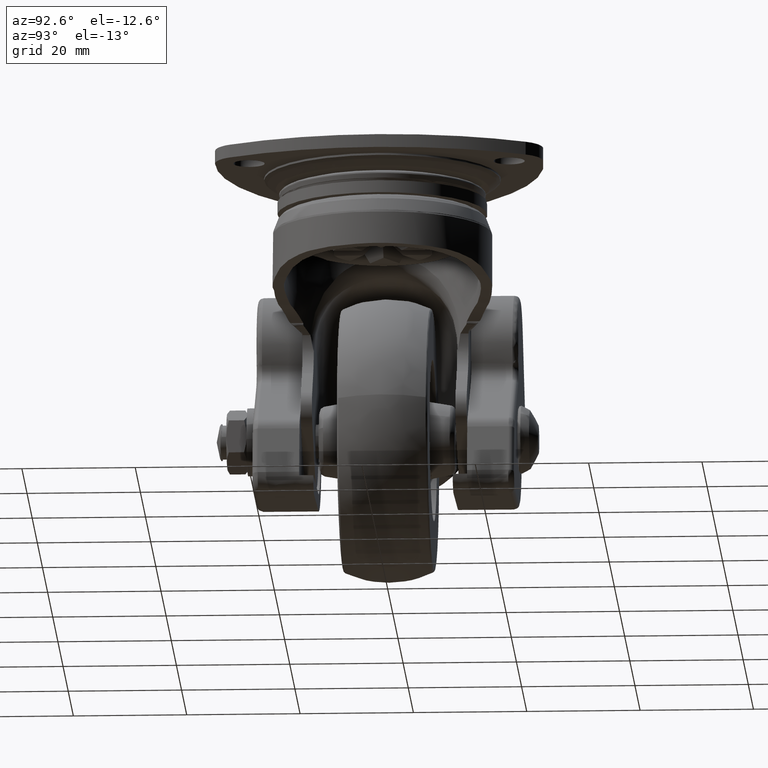
[diagram: clean part render]
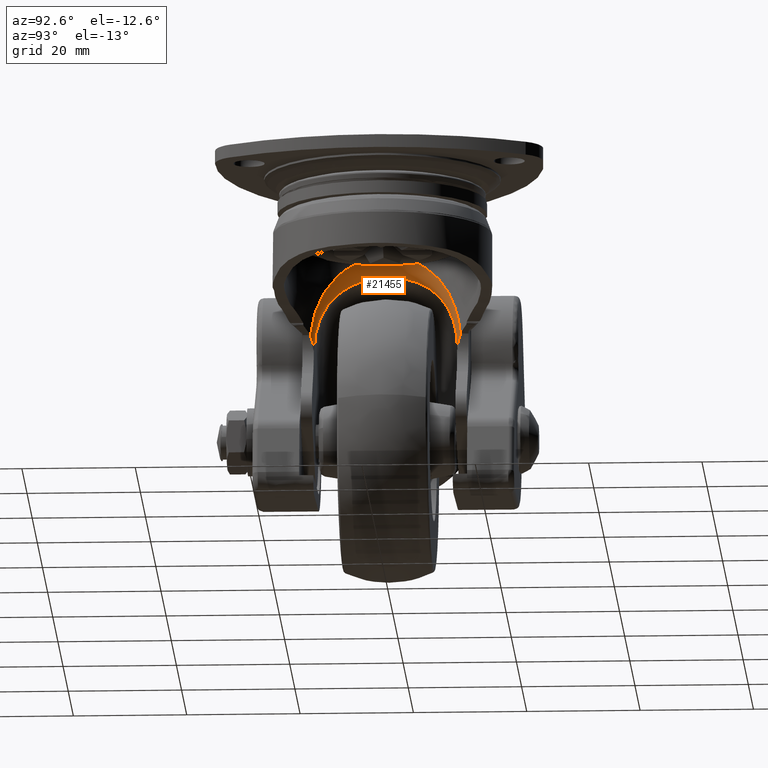
[diagram: same view with one face highlighted and labeled with its STEP entity id]
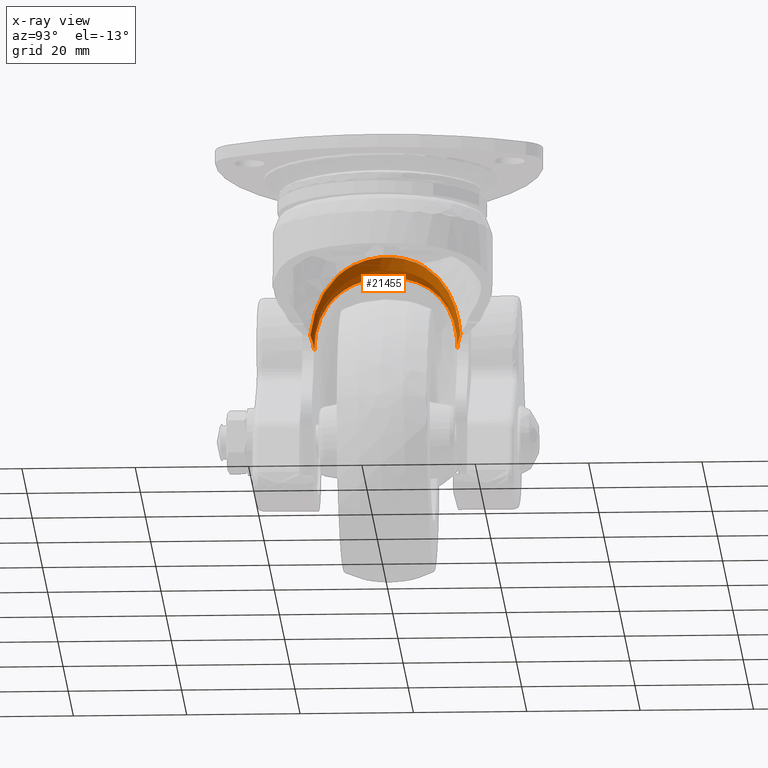
[diagram: x-ray of the same camera — body ghosted, the highlighted face saturated]
A machine part, auxiliary view. The second image highlights one B-rep face of the part: STEP entity #21455.
The next image is the same camera in x-ray: the body ghosted, the highlighted face saturated — about 0% of this face is hidden behind the body in this view.
In plain terms, the highlighted face is a freeform B-spline surface patch.
Its self-contained STEP definition (entity closure, byte-faithful):
#17005=CARTESIAN_POINT('',(-11.261278477554541,-13.233480632405840,-27.912135072350949));
#17006=VERTEX_POINT('',#17005);
#17007=CARTESIAN_POINT('',(-16.369466341763310,-5.829406526846057,-14.219856318878399));
#17008=VERTEX_POINT('',#17007);
#17009=CARTESIAN_POINT('',(-11.261278477554541,-13.233480632405840,-27.912135072350949));
#17010=CARTESIAN_POINT('',(-11.315166881773930,-13.187623284404779,-27.430767966451189));
#17011=CARTESIAN_POINT('',(-11.384089228616000,-13.128436100265571,-26.955259438005580));
#17012=CARTESIAN_POINT('',(-11.548155476626871,-12.984353164154911,-26.014947296582051));
#17013=CARTESIAN_POINT('',(-11.643306839953370,-12.899448443883291,-25.550147056945161));
#17014=CARTESIAN_POINT('',(-11.856633268476880,-12.703645613073260,-24.630622749485411));
#17015=CARTESIAN_POINT('',(-11.974813752248741,-12.592744596585449,-24.175900417564549));
#17016=CARTESIAN_POINT('',(-12.167282773296630,-12.405910973466890,-23.501126004629999));
#17017=CARTESIAN_POINT('',(-12.233986782569390,-12.340199876890271,-23.277383985123471));
#17018=CARTESIAN_POINT('',(-12.372102891131400,-12.201722650877761,-22.832476613030980));
#17019=CARTESIAN_POINT('',(-12.443207287819320,-12.129264301083071,-22.612296909980252));
#17020=CARTESIAN_POINT('',(-12.662034981338721,-11.902037754609379,-21.958424105540320));
#17021=CARTESIAN_POINT('',(-12.815263941135621,-11.737443458026570,-21.531382221325309));
#17022=CARTESIAN_POINT('',(-13.133358086140809,-11.380398683374020,-20.694603886106631));
#17023=CARTESIAN_POINT('',(-13.298229001870739,-11.187951970507889,-20.284867946485829));
#17024=CARTESIAN_POINT('',(-13.636783974328811,-10.772710277273600,-19.482741538836450));
#17025=CARTESIAN_POINT('',(-13.810473754863860,-10.549924796451560,-19.090348952068450));
#17026=CARTESIAN_POINT('',(-14.031359390860111,-10.250263398494690,-18.611035540038170));
#17027=CARTESIAN_POINT('',(-14.075773246287939,-10.189201268469800,-18.515631254936380));
#17028=CARTESIAN_POINT('',(-14.164639504271600,-10.065296949634931,-18.326580040437129));
#17029=CARTESIAN_POINT('',(-14.298002375582779,-9.876768786829416,-18.045619626065349));
#17030=CARTESIAN_POINT('',(-14.431318858396740,-9.680107505026088,-17.772497319350620));
#17031=CARTESIAN_POINT('',(-14.697263142485911,-9.275560874414261,-17.236739291576640));
#17032=CARTESIAN_POINT('',(-14.873646378892509,-8.990928001311461,-16.893522888853742));
#17033=CARTESIAN_POINT('',(-15.221195229271819,-8.389121451111668,-16.235789361071198));
#17034=CARTESIAN_POINT('',(-15.392370558582400,-8.071962279296066,-15.921263351070669));
#17035=CARTESIAN_POINT('',(-15.725845223476281,-7.401313292812350,-15.322639685185690));
#17036=CARTESIAN_POINT('',(-15.888159696196240,-7.047850947517954,-15.038523478720460));
#17037=CARTESIAN_POINT('',(-16.082819236461329,-6.579863538604995,-14.704313421608241));
#17038=CARTESIAN_POINT('',(-16.121337185478559,-6.484952495598422,-14.638522365206670));
#17039=CARTESIAN_POINT('',(-16.197466999007169,-6.292390987068082,-14.509109389575510));
#17040=CARTESIAN_POINT('',(-16.234954354118031,-6.195049018426869,-14.445699658289289));
#17041=CARTESIAN_POINT('',(-16.304865597826169,-6.008468220011812,-14.327975453990030));
#17042=CARTESIAN_POINT('',(-16.337458639777239,-5.919287258712676,-14.273322277330960));
#17043=CARTESIAN_POINT('',(-16.369466341763310,-5.829406526846057,-14.219856318878399));
#17044=B_SPLINE_CURVE_WITH_KNOTS('',3,(#17009,#17010,#17011,#17012,#17013,#17014,#17015,#17016,#17017,#17018,#17019,#17020,#17021,#17022,#17023,#17024,#17025,#17026,#17027,#17028,#17029,#17030,#17031,#17032,#17033,#17034,#17035,#17036,#17037,#17038,#17039,#17040,#17041,#17042,#17043),.UNSPECIFIED.,.F.,.U.,(4,2,2,2,2,2,2,2,2,2,1,2,2,2,2,2,2,4),(0.0,0.031250000000000,0.062500000000000,0.093750000000001,0.109375000000001,0.125000000000001,0.156250000000001,0.187500000000002,0.218750000000003,0.226562500000003,0.234375000000003,0.250000000000003,0.281250000000002,0.312500000000002,0.343750000000002,0.351562500000002,0.359375000000002,0.366422879869190),.UNSPECIFIED.);
#17045=EDGE_CURVE('',#17006,#17008,#17044,.T.);
#17088=CARTESIAN_POINT('',(-15.935262121990799,6.928849167732745,-14.958539373214119));
#17089=VERTEX_POINT('',#17088);
#17095=CARTESIAN_POINT('',(-11.261278477554541,13.233480632405840,-27.912135072350949));
#17096=VERTEX_POINT('',#17095);
#17097=CARTESIAN_POINT('',(-15.935262121990799,6.928849167732745,-14.958539373214119));
#17098=CARTESIAN_POINT('',(-15.816468095520801,7.202080175252930,-15.164457970473910));
#17099=CARTESIAN_POINT('',(-15.694079958409660,7.464346127374848,-15.379879726069820));
#17100=CARTESIAN_POINT('',(-15.401110411905860,8.055433759649620,-15.905288639493181));
#17101=CARTESIAN_POINT('',(-15.228357310531560,8.376285377244280,-16.222422912965659));
#17102=CARTESIAN_POINT('',(-14.964761218654830,8.833354548440791,-16.720991089080229));
#17103=CARTESIAN_POINT('',(-14.876148135684570,8.981665933813845,-16.891000565840329));
#17104=CARTESIAN_POINT('',(-14.742440238051049,9.198312927373420,-17.151667611338191));
#17105=CARTESIAN_POINT('',(-14.697739472577840,9.269558097978248,-17.239499218753711));
#17106=CARTESIAN_POINT('',(-14.608129855115640,9.410143314112363,-17.417039967791268));
#17107=CARTESIAN_POINT('',(-14.563223935504359,9.479475981475998,-17.506745341762439));
#17108=CARTESIAN_POINT('',(-14.339212279553330,9.820116241884351,-17.958117282872159));
#17109=CARTESIAN_POINT('',(-14.160939077804970,10.074565990475479,-18.329728232022109));
#17110=CARTESIAN_POINT('',(-13.809300011142501,10.551413040391180,-19.093012124056941));
#17111=CARTESIAN_POINT('',(-13.635927274290990,10.773797217960450,-19.484689435595129));
#17112=CARTESIAN_POINT('',(-13.297031987873360,11.189377454624120,-20.287777409373941));
#17113=CARTESIAN_POINT('',(-13.131503377844361,11.382567228292601,-20.699188964803639));
#17114=CARTESIAN_POINT('',(-12.931409591308130,11.607050045658790,-21.225921162444291));
#17115=CARTESIAN_POINT('',(-12.891732209288220,11.651094419126210,-21.331892320069219));
#17116=CARTESIAN_POINT('',(-12.813110643394751,11.737502213315910,-21.545092805506570));
#17117=CARTESIAN_POINT('',(-12.774131618293920,11.779902921398730,-21.652420617861360));
#17118=CARTESIAN_POINT('',(-12.658683679102200,11.904279956923350,-21.975429715990430));
#17119=CARTESIAN_POINT('',(-12.583702899127440,11.983438406112869,-22.192121829778671));
#17120=CARTESIAN_POINT('',(-12.365167460966100,12.210162495487150,-22.846243393970049));
#17121=CARTESIAN_POINT('',(-12.228011208648720,12.347007257318790,-23.287708958744229));
#17122=CARTESIAN_POINT('',(-11.973345745661190,12.594119484772071,-24.181560544943629));
#17123=CARTESIAN_POINT('',(-11.855831744922501,12.704386117143549,-24.633945602186120));
#17124=CARTESIAN_POINT('',(-11.643349504914630,12.899402799058810,-25.550090421144098));
#17125=CARTESIAN_POINT('',(-11.548375052940941,12.984157067524469,-26.013847701578651));
#17126=CARTESIAN_POINT('',(-11.384360313946360,13.128200499741061,-26.953543939190851));
#17127=CARTESIAN_POINT('',(-11.315311162701400,13.187500378130370,-27.429478265751420));
#17128=CARTESIAN_POINT('',(-11.261278477554541,13.233480632405840,-27.912135072350949));
#17129=B_SPLINE_CURVE_WITH_KNOTS('',3,(#17097,#17098,#17099,#17100,#17101,#17102,#17103,#17104,#17105,#17106,#17107,#17108,#17109,#17110,#17111,#17112,#17113,#17114,#17115,#17116,#17117,#17118,#17119,#17120,#17121,#17122,#17123,#17124,#17125,#17126,#17127,#17128),.UNSPECIFIED.,.F.,.U.,(4,2,2,2,2,2,2,2,2,2,2,2,2,2,2,4),(0.664218799372336,0.687500000000000,0.718750000000000,0.734375000000000,0.742187500000000,0.750000000000000,0.781250000000000,0.812500000000001,0.843750000000001,0.851562500000001,0.859375000000001,0.875000000000001,0.906250000000001,0.937500000000001,0.968750000000000,1.0),.UNSPECIFIED.);
#17130=EDGE_CURVE('',#17089,#17096,#17129,.T.);
#17484=CARTESIAN_POINT('',(-16.369466341763310,-5.829406526846057,-14.219856318878399));
#17485=CARTESIAN_POINT('',(-16.408419213039561,-5.720023669735037,-14.154789382849570));
#17486=CARTESIAN_POINT('',(-16.446505421487320,-5.609604514674099,-14.091480761281829));
#17487=CARTESIAN_POINT('',(-16.619153875464558,-5.091995195328609,-13.805735451469790));
#17488=CARTESIAN_POINT('',(-16.742636453110670,-4.671923404096718,-13.604967708431440));
#17489=CARTESIAN_POINT('',(-16.961453674192189,-3.801555771810738,-13.252957194028820));
#17490=CARTESIAN_POINT('',(-17.056811729875779,-3.351282082612505,-13.101679827063910));
#17491=CARTESIAN_POINT('',(-17.214104826694069,-2.416713685208116,-12.853807710947990));
#17492=CARTESIAN_POINT('',(-17.274240892709152,-1.942755370678305,-12.760018755847470));
#17493=CARTESIAN_POINT('',(-17.335091590665421,-1.222309931184540,-12.665321761733900));
#17494=CARTESIAN_POINT('',(-17.350483775237240,-0.980532649612833,-12.641430515380049));
#17495=CARTESIAN_POINT('',(-17.365987768006072,-0.615358422218371,-12.617378931982550));
#17496=CARTESIAN_POINT('',(-17.369895393558910,-0.492978124169997,-12.611320966788551));
#17497=CARTESIAN_POINT('',(-17.375111676345700,-0.248566428023368,-12.603235277252001));
#17498=CARTESIAN_POINT('',(-17.376422261971260,-0.126721236498476,-12.601204544993230));
#17499=CARTESIAN_POINT('',(-17.376604921667440,0.480735112620186,-12.600921252290830));
#17500=CARTESIAN_POINT('',(-17.356406283830520,0.961055867413377,-12.632160300285751));
#17501=CARTESIAN_POINT('',(-17.277635788075951,1.910957682994001,-12.754724995950060));
#17502=CARTESIAN_POINT('',(-17.219054938114549,2.380536322390413,-12.846063973593770));
#17503=CARTESIAN_POINT('',(-17.122744727186621,2.960873653455785,-12.997764536617630));
#17504=CARTESIAN_POINT('',(-17.102326721896532,3.076608372141505,-13.029987345459549));
#17505=CARTESIAN_POINT('',(-17.059194923344890,3.307410543885703,-13.098222601842551));
#17506=CARTESIAN_POINT('',(-17.036541454333690,3.422133390020702,-13.134140049834571));
#17507=CARTESIAN_POINT('',(-16.965803579781820,3.762517145142320,-13.246596887269099));
#17508=CARTESIAN_POINT('',(-16.914805903509830,3.985147570311367,-13.328054175695691));
#17509=CARTESIAN_POINT('',(-16.751301242845209,4.640928849354041,-13.590921131141741));
#17510=CARTESIAN_POINT('',(-16.628309583682299,5.062009716309060,-13.790760056095261));
#17511=CARTESIAN_POINT('',(-16.426191231342479,5.671627797461382,-14.125016112639621));
#17512=CARTESIAN_POINT('',(-16.355872210240211,5.871155621621457,-14.242202296696020));
#17513=CARTESIAN_POINT('',(-16.246340062001810,6.165115761070930,-14.426473614904610));
#17514=CARTESIAN_POINT('',(-16.209153460504378,6.262213370865659,-14.489313591682491));
#17515=CARTESIAN_POINT('',(-16.133486597603181,6.454655717522899,-14.617809233474651));
#17516=CARTESIAN_POINT('',(-16.094949652737679,6.550135806799496,-14.683562334423240));
#17517=CARTESIAN_POINT('',(-16.016163900625131,6.740518958715915,-14.818687170990090));
#17518=CARTESIAN_POINT('',(-15.975923552123749,6.835326389729112,-14.888056582629510));
#17519=CARTESIAN_POINT('',(-15.935262121990799,6.928849167732745,-14.958539373214119));
#17520=B_SPLINE_CURVE_WITH_KNOTS('',3,(#17484,#17485,#17486,#17487,#17488,#17489,#17490,#17491,#17492,#17493,#17494,#17495,#17496,#17497,#17498,#17499,#17500,#17501,#17502,#17503,#17504,#17505,#17506,#17507,#17508,#17509,#17510,#17511,#17512,#17513,#17514,#17515,#17516,#17517,#17518,#17519),.UNSPECIFIED.,.F.,.U.,(4,2,2,2,2,2,2,2,2,2,2,2,2,2,2,2,2,4),(0.366422879869190,0.375000000000002,0.406250000000002,0.437500000000001,0.468750000000001,0.484375000000001,0.492187500000001,0.500000000000001,0.531250000000001,0.562500000000000,0.570312500000000,0.578125000000000,0.593750000000000,0.625000000000000,0.640625000000000,0.648437500000000,0.656250000000000,0.664218799372336),.UNSPECIFIED.);
#17521=EDGE_CURVE('',#17008,#17089,#17520,.T.);
#20830=CARTESIAN_POINT('',(-11.394055027523320,13.132754109419920,-28.387699328424802));
#20831=VERTEX_POINT('',#20830);
#20847=CARTESIAN_POINT('',(-12.904765427292860,12.650000000000000,-30.608391342423548));
#20848=VERTEX_POINT('',#20847);
#20849=CARTESIAN_POINT('',(-12.904765427292860,12.650000000000000,-30.608391342423548));
#20850=CARTESIAN_POINT('',(-12.782786224193201,12.659866383514469,-30.414821077420399));
#20851=CARTESIAN_POINT('',(-12.661316170009240,12.673306597580369,-30.221451176274179));
#20852=CARTESIAN_POINT('',(-12.417726368388760,12.711673246666940,-29.836842228650450));
#20853=CARTESIAN_POINT('',(-12.295637065869050,12.736536211590700,-29.645573940940071));
#20854=CARTESIAN_POINT('',(-12.048138424599760,12.804363526587320,-29.267888872571881));
#20855=CARTESIAN_POINT('',(-11.922777917207140,12.847140662018830,-29.081309625829139));
#20856=CARTESIAN_POINT('',(-11.728396546566451,12.934132737680001,-28.809270840217099));
#20857=CARTESIAN_POINT('',(-11.663030489503180,12.966775974937050,-28.720651300423011));
#20858=CARTESIAN_POINT('',(-11.530338207039870,13.041667651675510,-28.549191748904171));
#20859=CARTESIAN_POINT('',(-11.463026737957369,13.083878884027840,-28.466323773381230));
#20860=CARTESIAN_POINT('',(-11.394055027523320,13.132754109419920,-28.387699328424802));
#20861=B_SPLINE_CURVE_WITH_KNOTS('',3,(#20849,#20850,#20851,#20852,#20853,#20854,#20855,#20856,#20857,#20858,#20859,#20860),.UNSPECIFIED.,.F.,.U.,(4,2,2,2,2,4),(0.0,0.249999999999999,0.499999999999998,0.749999999999997,0.874999999999998,1.0),.UNSPECIFIED.);
#20862=EDGE_CURVE('',#20848,#20831,#20861,.T.);
#20945=CARTESIAN_POINT('',(-12.904765427267961,-12.650000000000000,-30.608391342426600));
#20946=VERTEX_POINT('',#20945);
#20970=CARTESIAN_POINT('',(-11.394055027522301,-13.132754109418620,-28.387699328420599));
#20971=VERTEX_POINT('',#20970);
#20972=CARTESIAN_POINT('',(-11.394055027522301,-13.132754109418620,-28.387699328420599));
#20973=CARTESIAN_POINT('',(-11.463046398295120,-13.083864952178960,-28.466346185224051));
#20974=CARTESIAN_POINT('',(-11.530405265089501,-13.041624116231580,-28.549272807897609));
#20975=CARTESIAN_POINT('',(-11.663227681083921,-12.966670378907519,-28.720911705190399));
#20976=CARTESIAN_POINT('',(-11.728778920421171,-12.933949104140400,-28.809795338344191));
#20977=CARTESIAN_POINT('',(-11.923082456490050,-12.847029491441370,-29.081757196104970));
#20978=CARTESIAN_POINT('',(-12.048330101085011,-12.804304253614729,-29.268177403923779));
#20979=CARTESIAN_POINT('',(-12.295732249101260,-12.736516878119740,-29.645723164603890));
#20980=CARTESIAN_POINT('',(-12.417790443900790,-12.711661828918510,-29.836943017511640));
#20981=CARTESIAN_POINT('',(-12.661336235105180,-12.673304763207311,-30.221483238860571));
#20982=CARTESIAN_POINT('',(-12.782793656371521,-12.659865782356761,-30.414832871633291));
#20983=CARTESIAN_POINT('',(-12.904765427267961,-12.650000000000000,-30.608391342426600));
#20984=B_SPLINE_CURVE_WITH_KNOTS('',3,(#20972,#20973,#20974,#20975,#20976,#20977,#20978,#20979,#20980,#20981,#20982,#20983),.UNSPECIFIED.,.F.,.U.,(4,2,2,2,2,4),(0.0,0.125000000000000,0.250000000000000,0.500000000000000,0.750000000000000,1.0),.UNSPECIFIED.);
#20985=EDGE_CURVE('',#20971,#20946,#20984,.T.);
#21012=CARTESIAN_POINT('',(-13.013166582435739,-12.638389529433807,-30.890742056037034));
#21013=CARTESIAN_POINT('',(-13.038162973445033,-12.656588327628166,-30.388839853720636));
#21014=CARTESIAN_POINT('',(-13.090018723805956,-12.653193834447286,-29.888005293257617));
#21015=CARTESIAN_POINT('',(-13.242515741726852,-12.606705775511708,-28.888787950272654));
#21016=CARTESIAN_POINT('',(-13.344008636616913,-12.563095312774783,-28.387643206180094));
#21017=CARTESIAN_POINT('',(-13.706052270376437,-12.378227395492996,-26.921446955124019));
#21018=CARTESIAN_POINT('',(-14.023565612350351,-12.184540701805400,-25.985141651539003));
#21019=CARTESIAN_POINT('',(-14.576429159605294,-11.790523560502519,-24.631646215593246));
#21020=CARTESIAN_POINT('',(-14.774675404736223,-11.640800777826925,-24.187059648718762));
#21021=CARTESIAN_POINT('',(-15.186241709977740,-11.308730120105238,-23.326643664576590));
#21022=CARTESIAN_POINT('',(-15.399484293909799,-11.126549026807458,-22.910548837765724));
#21023=CARTESIAN_POINT('',(-15.835724498704971,-10.728578111877800,-22.104467368042986));
#21024=CARTESIAN_POINT('',(-16.058736364321561,-10.512788487114904,-21.714488899601662));
#21025=CARTESIAN_POINT('',(-16.509993735550879,-10.044982453101646,-20.959592024527112));
#21026=CARTESIAN_POINT('',(-16.739195112171288,-9.791834825057794,-20.593233994303368));
#21027=CARTESIAN_POINT('',(-17.421445369360612,-8.980029817610591,-19.541821637214969));
#21028=CARTESIAN_POINT('',(-17.863628525896793,-8.376671328312092,-18.911716148070493));
#21029=CARTESIAN_POINT('',(-18.482432855252938,-7.365830587085496,-18.068466269894813));
#21030=CARTESIAN_POINT('',(-18.681291687904714,-7.011138498272512,-17.804522862342722));
#21031=CARTESIAN_POINT('',(-19.059413104810808,-6.262230111975046,-17.312266901339491));
#21032=CARTESIAN_POINT('',(-19.239585384654635,-5.865303458090878,-17.082858045641174));
#21033=CARTESIAN_POINT('',(-19.729101639330960,-4.641218632093485,-16.468767720901049));
#21034=CARTESIAN_POINT('',(-19.992291283165621,-3.774934702359326,-16.151313113409618));
#21035=CARTESIAN_POINT('',(-20.267171177843078,-2.389208295056797,-15.822817451019693));
#21036=CARTESIAN_POINT('',(-20.337291153346388,-1.918809661221579,-15.739861165946898));
#21037=CARTESIAN_POINT('',(-20.407840112303820,-1.207183703048900,-15.656572283921413));
#21038=CARTESIAN_POINT('',(-20.425648731295379,-0.968610844450468,-15.635600752051763));
#21039=CARTESIAN_POINT('',(-20.449568109394288,-0.488689673024226,-15.607447992391673));
#21040=CARTESIAN_POINT('',(-20.455635024553242,-0.246984914307455,-15.600318240605873));
#21041=CARTESIAN_POINT('',(-20.456230334542273,0.951590536882655,-15.599618294478436));
#21042=CARTESIAN_POINT('',(-20.363307784908148,1.891957048610394,-15.708020628784139));
#21043=CARTESIAN_POINT('',(-20.137672252008723,3.044888915306586,-15.977555767716224));
#21044=CARTESIAN_POINT('',(-20.086915486021201,3.274572795844599,-16.038402960505021));
#21045=CARTESIAN_POINT('',(-19.976272513412756,3.724708450208071,-16.171772270699964));
#21046=CARTESIAN_POINT('',(-19.916229708334523,3.946057778567095,-16.244480429242106));
#21047=CARTESIAN_POINT('',(-19.722850671681439,4.599434999833239,-16.480162379684696));
#21048=CARTESIAN_POINT('',(-19.576293220386059,5.020819066170831,-16.660627397358457));
#21049=CARTESIAN_POINT('',(-19.251902348392651,5.836862133587016,-17.067258749625548));
#21050=CARTESIAN_POINT('',(-19.072881703545040,6.233680452038186,-17.294973378807093));
#21051=CARTESIAN_POINT('',(-18.693743434441767,6.988226527933621,-17.788087944312025));
#21052=CARTESIAN_POINT('',(-18.493816545255250,7.346258287270990,-18.053182703853803));
#21053=CARTESIAN_POINT('',(-18.078004302588678,8.027426339498250,-18.619373416493204));
#21054=CARTESIAN_POINT('',(-17.862101921353389,8.350545137126114,-18.920476449574231));
#21055=CARTESIAN_POINT('',(-17.418629261328839,8.964128087496624,-19.559110657701574));
#21056=CARTESIAN_POINT('',(-17.191308166477906,9.253996564344224,-19.896418079937163));
#21057=CARTESIAN_POINT('',(-16.511126021571581,10.062955156653823,-20.944844817192514));
#21058=CARTESIAN_POINT('',(-16.055714943507375,10.527947794339209,-21.697817242268915));
#21059=CARTESIAN_POINT('',(-15.397047175675437,11.128734169161062,-22.915120357210252));
#21060=CARTESIAN_POINT('',(-15.181222250882284,11.312919771621250,-23.336726027026263));
#21061=CARTESIAN_POINT('',(-14.771078825796138,11.643560031304958,-24.194998682587979));
#21062=CARTESIAN_POINT('',(-14.575702693117289,11.791030071331916,-24.633479312504857));
#21063=CARTESIAN_POINT('',(-14.026143424904877,12.182726164942512,-25.978722130862948));
#21064=CARTESIAN_POINT('',(-13.707652302389739,12.377435520465495,-26.914693070130713));
#21065=CARTESIAN_POINT('',(-13.221167217632757,12.625789170313020,-28.885372686847361));
#21066=CARTESIAN_POINT('',(-13.063125648311050,12.674829284258951,-29.886717277950130));
#21067=CARTESIAN_POINT('',(-13.013136423441397,12.638367552018533,-30.891347864627800));
#21068=CARTESIAN_POINT('',(-13.008151814215612,-12.638486103945814,-30.890973395445247));
#21069=CARTESIAN_POINT('',(-13.033037787659010,-12.656614523663121,-30.388888921020289));
#21070=CARTESIAN_POINT('',(-13.084781794221154,-12.653137236248412,-29.887874149061489));
#21071=CARTESIAN_POINT('',(-13.237053398353680,-12.606458986890752,-28.888305725966152));
#21072=CARTESIAN_POINT('',(-13.338432252796828,-12.562740698909527,-28.386989486378177));
#21073=CARTESIAN_POINT('',(-13.700139280893010,-12.377524059257462,-26.920314536835221));
#21074=CARTESIAN_POINT('',(-14.017432476463103,-12.183569014531969,-25.983730708011798));
#21075=CARTESIAN_POINT('',(-14.569952523365062,-11.789115798635340,-24.629904793615790));
#21076=CARTESIAN_POINT('',(-14.768083267302538,-11.639243415684259,-24.185223359877210));
#21077=CARTESIAN_POINT('',(-15.179414956629005,-11.306874828342210,-23.324654905501973));
#21078=CARTESIAN_POINT('',(-15.392538805973693,-11.124545682435743,-22.908501945203543));
#21079=CARTESIAN_POINT('',(-15.828534486176917,-10.726288083088646,-22.102343106667799));
#21080=CARTESIAN_POINT('',(-16.051421004645203,-10.510359938037377,-21.712344945517888));
#21081=CARTESIAN_POINT('',(-16.502417463445482,-10.042296139735564,-20.957449133174556));
#21082=CARTESIAN_POINT('',(-16.731483180818941,-9.789028756269881,-20.591111460596270));
#21083=CARTESIAN_POINT('',(-17.413317041995949,-8.976918128316351,-19.539819854448059));
#21084=CARTESIAN_POINT('',(-17.855203709387126,-8.373419141725147,-18.909871035275543));
#21085=CARTESIAN_POINT('',(-18.473537482757632,-7.362540361027913,-18.066945527469489));
#21086=CARTESIAN_POINT('',(-18.672238793446134,-7.007863726431981,-17.803122818375503));
#21087=CARTESIAN_POINT('',(-19.050044582863084,-6.259056118433036,-17.311126366219462));
#21088=CARTESIAN_POINT('',(-19.230057564913299,-5.862214804754786,-17.081857019653683));
#21089=CARTESIAN_POINT('',(-19.719126498860298,-4.638494244162363,-16.468177092560616));
#21090=CARTESIAN_POINT('',(-19.982038320149336,-3.772600201913782,-16.150996317835787));
#21091=CARTESIAN_POINT('',(-20.256617901304544,-2.387659533458306,-15.822803578114790));
#21092=CARTESIAN_POINT('',(-20.326658506955351,-1.917550390494638,-15.739928710806312));
#21093=CARTESIAN_POINT('',(-20.397127295209934,-1.206382001277776,-15.656722492765061));
#21094=CARTESIAN_POINT('',(-20.414915485141403,-0.967965627947157,-15.635772108036546));
#21095=CARTESIAN_POINT('',(-20.438807419471818,-0.488362412691565,-15.607647798188953));
#21096=CARTESIAN_POINT('',(-20.444867319375955,-0.246819557847155,-15.600525330827033));
#21097=CARTESIAN_POINT('',(-20.445461943657595,0.950953467927588,-15.599826096666098));
#21098=CARTESIAN_POINT('',(-20.352652086086412,1.890687726431882,-15.708111224021364));
#21099=CARTESIAN_POINT('',(-20.127258918594414,3.042970501126148,-15.977400146963449));
#21100=CARTESIAN_POINT('',(-20.076556644460410,3.272529941532605,-16.038192568074773));
#21101=CARTESIAN_POINT('',(-19.966030058295452,3.722434964864064,-16.171445987713238));
#21102=CARTESIAN_POINT('',(-19.906049467633764,3.943677578790692,-16.244092766039831));
#21103=CARTESIAN_POINT('',(-19.712867343505163,4.596760383169356,-16.479583130486454));
#21104=CARTESIAN_POINT('',(-19.566453587064540,5.017984886216106,-16.659911413679652));
#21105=CARTESIAN_POINT('',(-19.242363446613087,5.833780551321127,-17.066267588373236));
#21106=CARTESIAN_POINT('',(-19.063501561112947,6.230511795298432,-17.293842806518267));
#21107=CARTESIAN_POINT('',(-18.684680536538920,6.984953411514345,-17.786695747696978));
#21108=CARTESIAN_POINT('',(-18.484912403601868,7.342968289920834,-18.051668427131432));
#21109=CARTESIAN_POINT('',(-18.069412673794357,8.024159376140320,-18.617641751222372));
#21110=CARTESIAN_POINT('',(-17.853664005859812,8.347319122692660,-18.918649950851368));
#21111=CARTESIAN_POINT('',(-17.410491703693978,8.961029676090897,-19.557128388757615));
#21112=CARTESIAN_POINT('',(-17.183316707023813,9.250985646989863,-19.894375839483860));
#21113=CARTESIAN_POINT('',(-16.503560448173772,10.060255888666203,-20.942681379106435));
#21114=CARTESIAN_POINT('',(-16.048405622337246,10.525516790151444,-21.695655082827322));
#21115=CARTESIAN_POINT('',(-15.390103069265177,11.126732467206194,-22.913073964588893));
#21116=CARTESIAN_POINT('',(-15.174398314446936,11.311068019430088,-23.334738834897827));
#21117=CARTESIAN_POINT('',(-14.764488768257678,11.642005353840490,-24.193164020051718));
#21118=CARTESIAN_POINT('',(-14.569226502541845,11.789622875634027,-24.631738343965623));
#21119=CARTESIAN_POINT('',(-14.020008639460865,12.181752398524186,-25.977309560562631));
#21120=CARTESIAN_POINT('',(-13.701737796365979,12.376730638533202,-26.913558460063353));
#21121=CARTESIAN_POINT('',(-13.215707497042375,12.625554984176992,-28.884884364571754));
#21122=CARTESIAN_POINT('',(-13.057890603447923,12.674785445660381,-29.886585052834583));
#21123=CARTESIAN_POINT('',(-13.008121788873769,12.638464211687010,-30.891579424615628));
#21124=CARTESIAN_POINT('',(-11.950001923051611,-12.658863976837269,-30.939787569674220));
#21125=CARTESIAN_POINT('',(-11.948869186205103,-12.662155965431804,-30.399268491219232));
#21126=CARTESIAN_POINT('',(-11.973722088855022,-12.641129441005340,-29.860050778603966));
#21127=CARTESIAN_POINT('',(-12.070292418207552,-12.553744737055444,-28.785302222516073));
#21128=CARTESIAN_POINT('',(-12.142686360592798,-12.486700726343413,-28.246812125381567));
#21129=CARTESIAN_POINT('',(-12.415820326944280,-12.224757330882293,-26.674349906560700));
#21130=CARTESIAN_POINT('',(-12.671626899067121,-11.970349843112956,-25.674124708206680));
#21131=CARTESIAN_POINT('',(-13.123210856859126,-11.474651982202291,-24.240908462760153));
#21132=CARTESIAN_POINT('',(-13.286034903635473,-11.289116307687101,-23.772387781098537));
#21133=CARTESIAN_POINT('',(-13.623649394719404,-10.884067838728823,-22.871431722945605));
#21134=CARTESIAN_POINT('',(-13.798368906610298,-10.664726109665592,-22.438686931499170));
#21135=CARTESIAN_POINT('',(-14.153373942031108,-10.192747166773374,-21.607423406974103));
#21136=CARTESIAN_POINT('',(-14.333672323013152,-9.940102676499624,-21.208914565631233));
#21137=CARTESIAN_POINT('',(-14.694209944890108,-9.401161296877373,-20.446011291286442));
#21138=CARTESIAN_POINT('',(-14.875187002176750,-9.113595517820873,-20.080208156415861));
#21139=CARTESIAN_POINT('',(-15.404838146150013,-8.208031493031943,-19.045186916940491));
#21140=CARTESIAN_POINT('',(-15.735610695431200,-7.555204055157879,-18.445660546458448));
#21141=CARTESIAN_POINT('',(-16.174922008887144,-6.512327002061069,-17.673976928069251));
#21142=CARTESIAN_POINT('',(-16.311975631688984,-6.154067918502746,-17.438104512267497));
#21143=CARTESIAN_POINT('',(-16.564453228224867,-5.416954135674026,-17.008527487781055));
#21144=CARTESIAN_POINT('',(-16.680389788968103,-5.035683646956732,-16.813980026546037));
#21145=CARTESIAN_POINT('',(-16.984689229235308,-3.891670886869266,-16.306270986945332));
#21146=CARTESIAN_POINT('',(-17.132630930034637,-3.123817717163228,-16.062955460977943));
#21147=CARTESIAN_POINT('',(-17.280268495458163,-1.950861004903324,-15.818890991144526));
#21148=CARTESIAN_POINT('',(-17.316405634200390,-1.561033002072201,-15.759051617712000));
#21149=CARTESIAN_POINT('',(-17.352377955558779,-0.978525881189589,-15.699414183803974));
#21150=CARTESIAN_POINT('',(-17.361352024008458,-0.784404242065657,-15.684522166171160));
#21151=CARTESIAN_POINT('',(-17.373373984618979,-0.395134676099557,-15.664567138479152));
#21152=CARTESIAN_POINT('',(-17.376400720135255,-0.199698024795781,-15.659539709118560));
#21153=CARTESIAN_POINT('',(-17.376698427110984,0.769402297676689,-15.659045322547653));
#21154=CARTESIAN_POINT('',(-17.331738770757720,1.530832184842674,-15.733795166764493));
#21155=CARTESIAN_POINT('',(-17.210750889267747,2.505671815084707,-15.933814759178631));
#21156=CARTESIAN_POINT('',(-17.183147426301961,2.701924293884609,-15.979426209549606));
#21157=CARTESIAN_POINT('',(-17.121775042776918,3.091104681416515,-16.080839584184393));
#21158=CARTESIAN_POINT('',(-17.087922819063170,3.284783097218200,-16.136778603915417));
#21159=CARTESIAN_POINT('',(-16.976654655577626,3.863706243123135,-16.320823548739263));
#21160=CARTESIAN_POINT('',(-16.889512733067573,4.246926467627189,-16.465123061518309));
#21161=CARTESIAN_POINT('',(-16.688215053669936,5.008652190213031,-16.800872999113064));
#21162=CARTESIAN_POINT('',(-16.573245915965515,5.389291590932512,-16.993696615257392));
#21163=CARTESIAN_POINT('',(-16.320477169529681,6.131108102649050,-17.423518763896446));
#21164=CARTESIAN_POINT('',(-16.182871243304824,6.492385537292533,-17.660173381489983));
#21165=CARTESIAN_POINT('',(-15.887924574824240,7.194649412928687,-18.177957115147716));
#21166=CARTESIAN_POINT('',(-15.730582323549834,7.535614839123355,-18.459080761728874));
#21167=CARTESIAN_POINT('',(-15.399635001107919,8.195387007597265,-19.067293604026624));
#21168=CARTESIAN_POINT('',(-15.226187935159988,8.513604319114068,-19.394225951571670));
#21169=CARTESIAN_POINT('',(-14.698105644545636,9.416100304113318,-20.426396693269322));
#21170=CARTESIAN_POINT('',(-14.332412258690715,9.954795247604229,-21.188049634040940));
#21171=CARTESIAN_POINT('',(-13.796382013453716,10.667327849182300,-22.443412525605073));
#21172=CARTESIAN_POINT('',(-13.619534571139846,10.889138188911893,-22.881948422683617));
#21173=CARTESIAN_POINT('',(-13.283081768064781,11.292522809041758,-23.780742442794381));
#21174=CARTESIAN_POINT('',(-13.122618640725969,11.475292971971299,-24.242852509505433));
#21175=CARTESIAN_POINT('',(-12.673730050027267,11.968059370126664,-25.667321025714038));
#21176=CARTESIAN_POINT('',(-12.417014831431230,12.223619287839174,-26.667103455380101));
#21177=CARTESIAN_POINT('',(-12.050028257291824,12.575555004784432,-28.780624974450770));
#21178=CARTESIAN_POINT('',(-11.947694157247737,12.665488590025200,-29.858544060407862));
#21179=CARTESIAN_POINT('',(-11.950003302930341,12.658859991414728,-30.940439994699631));
#21180=CARTESIAN_POINT('',(-11.138458507635209,-13.337022513658679,-31.002361046302095));
#21181=CARTESIAN_POINT('',(-11.115567299937352,-13.356140251848082,-30.413279760247651));
#21182=CARTESIAN_POINT('',(-11.120018713641567,-13.352456234790555,-29.824283976647976));
#21183=CARTESIAN_POINT('',(-11.178940864020920,-13.303164555384022,-28.646459289715796));
#21184=CARTESIAN_POINT('',(-11.234015838771633,-13.257011045113057,-28.054346934752903));
#21185=CARTESIAN_POINT('',(-11.462060333014506,-13.061496575991756,-26.317704554802116));
#21186=CARTESIAN_POINT('',(-11.696433920812087,-12.856775449251286,-25.202893142158260));
#21187=CARTESIAN_POINT('',(-12.133309279832458,-12.440446051658874,-23.583579050646446));
#21188=CARTESIAN_POINT('',(-12.294192739880710,-12.282264908405939,-23.050329102151728));
#21189=CARTESIAN_POINT('',(-12.634915236055788,-11.931476224213764,-22.015929848636763));
#21190=CARTESIAN_POINT('',(-12.814645216882333,-11.739045147495602,-21.514479771444961));
#21191=CARTESIAN_POINT('',(-13.187368821275914,-11.318728609979644,-20.541002941118290));
#21192=CARTESIAN_POINT('',(-13.380377833604671,-11.090843647327418,-20.068985062655003));
#21193=CARTESIAN_POINT('',(-13.774893788259227,-10.596868625136334,-19.153541042851533));
#21194=CARTESIAN_POINT('',(-13.977254802653551,-10.329584392336518,-18.708360535826657));
#21195=CARTESIAN_POINT('',(-14.584322686529228,-9.472542747455558,-17.428581390944970));
#21196=CARTESIAN_POINT('',(-14.983974304513760,-8.835669405595866,-16.658668376516037));
#21197=CARTESIAN_POINT('',(-15.548219689611543,-7.768916903203406,-15.626053366415668));
#21198=CARTESIAN_POINT('',(-15.730447943203076,-7.394641885935947,-15.302402435078783));
#21199=CARTESIAN_POINT('',(-16.078206260623823,-6.604468025290266,-14.698203963239662));
#21200=CARTESIAN_POINT('',(-16.244583568044206,-6.185709186683585,-14.416304412379301));
#21201=CARTESIAN_POINT('',(-16.697853937592164,-4.894420302811125,-13.661141316724581));
#21202=CARTESIAN_POINT('',(-16.943245428045248,-3.980733538464889,-13.269974549455608));
#21203=CARTESIAN_POINT('',(-17.199963668708751,-2.519374815061781,-12.865028811058359));
#21204=CARTESIAN_POINT('',(-17.265565268353406,-2.023329719031927,-12.762715073076421));
#21205=CARTESIAN_POINT('',(-17.331592692172126,-1.272929107418730,-12.659980640161686));
#21206=CARTESIAN_POINT('',(-17.348267196739211,-1.021360775432786,-12.634109653832937));
#21207=CARTESIAN_POINT('',(-17.370665399917137,-0.515301343936704,-12.599378816183263));
#21208=CARTESIAN_POINT('',(-17.376347963580052,-0.260434546103058,-12.590582499349761));
#21209=CARTESIAN_POINT('',(-17.376905513192987,1.003409680209375,-12.589718961956352));
#21210=CARTESIAN_POINT('',(-17.289764229681953,1.994983012111919,-12.723508690784115));
#21211=CARTESIAN_POINT('',(-17.079016366765700,3.210843553284790,-13.055780945591479));
#21212=CARTESIAN_POINT('',(-17.031638683189296,3.453070191054254,-13.130777535193324));
#21213=CARTESIAN_POINT('',(-16.928460508766221,3.927803110328525,-13.295115451606453));
#21214=CARTESIAN_POINT('',(-16.872513805378826,4.161255950091949,-13.384686163634964));
#21215=CARTESIAN_POINT('',(-16.692531861209162,4.850385505393819,-13.674933384614327));
#21216=CARTESIAN_POINT('',(-16.556377259192981,5.294863665438216,-13.897066620245708));
#21217=CARTESIAN_POINT('',(-16.255968668709855,6.155704653355635,-14.397130793289037));
#21218=CARTESIAN_POINT('',(-16.090624767311350,6.574347079563692,-14.676962726500449));
#21219=CARTESIAN_POINT('',(-15.741870496077118,7.370465722626791,-15.282244129138521));
#21220=CARTESIAN_POINT('',(-15.558629136834163,7.748263242331370,-15.607323514039050));
#21221=CARTESIAN_POINT('',(-15.179416419047287,8.467103757409289,-16.300687063261755));
#21222=CARTESIAN_POINT('',(-14.983428425087267,8.808129364510856,-16.668982160826886));
#21223=CARTESIAN_POINT('',(-14.583365392385334,9.455777456886004,-17.448876741501763));
#21224=CARTESIAN_POINT('',(-14.379532175872972,9.761772167020219,-17.860195778934031));
#21225=CARTESIAN_POINT('',(-13.774346263581496,10.615819933451460,-19.136341984845867));
#21226=CARTESIAN_POINT('',(-13.375319424480166,11.106838154799551,-20.049922022233744));
#21227=CARTESIAN_POINT('',(-12.812570584624419,11.741353070240761,-21.519997430395712));
#21228=CARTESIAN_POINT('',(-12.630715629467154,11.935901763513105,-22.028067734145839));
#21229=CARTESIAN_POINT('',(-12.291260320377352,12.285179952078138,-23.059856293701472));
#21230=CARTESIAN_POINT('',(-12.132740844108840,12.440981250661503,-23.585770300976773));
#21231=CARTESIAN_POINT('',(-11.698459591791149,12.854858068875700,-25.195216349693762));
#21232=CARTESIAN_POINT('',(-11.463041324598088,13.060659033131026,-26.309709474971513));
#21233=CARTESIAN_POINT('',(-11.156671472223037,13.323318147231753,-28.643891438034732));
#21234=CARTESIAN_POINT('',(-11.092623906673467,13.375301789740123,-29.823977870695067));
#21235=CARTESIAN_POINT('',(-11.138486151681279,13.336999426541928,-31.003072087556529));
#21236=CARTESIAN_POINT('',(-11.134634777248111,-13.340217777590651,-31.002655872308253));
#21237=CARTESIAN_POINT('',(-11.111650899927444,-13.359401879009853,-30.413345611213643));
#21238=CARTESIAN_POINT('',(-11.116018176599850,-13.355789581325116,-29.824116369935570));
#21239=CARTESIAN_POINT('',(-11.174792104637790,-13.306652699302768,-28.645813050959021));
#21240=CARTESIAN_POINT('',(-11.229802829523107,-13.260582553618361,-28.053454578713307));
#21241=CARTESIAN_POINT('',(-11.457694714033240,-13.065326559167881,-26.316072091994759));
#21242=CARTESIAN_POINT('',(-11.692015535592386,-12.860791649002369,-25.200758095420934));
#21243=CARTESIAN_POINT('',(-12.128903490905708,-12.444744544474201,-23.580653452069452));
#21244=CARTESIAN_POINT('',(-12.289806627622355,-12.286656797973821,-23.047136023112824));
#21245=CARTESIAN_POINT('',(-12.630601801645032,-11.936045629783990,-22.012197651068004));
#21246=CARTESIAN_POINT('',(-12.810384182423986,-11.743698598954845,-21.510476534970355));
#21247=CARTESIAN_POINT('',(-13.183246643417615,-11.323533445559022,-20.536452266657523));
#21248=CARTESIAN_POINT('',(-13.376341589745783,-11.095715878551127,-20.064158607129386));
#21249=CARTESIAN_POINT('',(-13.771064246694790,-10.601849513244774,-19.148157075103899));
#21250=CARTESIAN_POINT('',(-13.973545995857016,-10.334606896045258,-18.702694275298587));
#21251=CARTESIAN_POINT('',(-14.581021302818527,-9.477630569760894,-17.422076900276860));
#21252=CARTESIAN_POINT('',(-14.981004065098480,-8.840729416925472,-16.651606724576197));
#21253=CARTESIAN_POINT('',(-15.545808477975473,-7.773751581643538,-15.618174063962581));
#21254=CARTESIAN_POINT('',(-15.728230391185093,-7.399372593276969,-15.294258316501390));
#21255=CARTESIAN_POINT('',(-16.076384148998759,-6.608917992091866,-14.689546495672294));
#21256=CARTESIAN_POINT('',(-16.242964443527157,-6.189981807075899,-14.407396473060247));
#21257=CARTESIAN_POINT('',(-16.696813631897577,-4.898057114451952,-13.651547854765672));
#21258=CARTESIAN_POINT('',(-16.942567912662838,-3.983799103908130,-13.259982826169407));
#21259=CARTESIAN_POINT('',(-17.199680579766468,-2.521378928384871,-12.854615916166628));
#21260=CARTESIAN_POINT('',(-17.265386732691507,-2.024953162313425,-12.752192864602870));
#21261=CARTESIAN_POINT('',(-17.331519983591612,-1.273958954396123,-12.649348448768938));
#21262=CARTESIAN_POINT('',(-17.348221470009843,-1.022188852644098,-12.623449567568718));
#21263=CARTESIAN_POINT('',(-17.370655946938463,-0.515720726408756,-12.588681288499018));
#21264=CARTESIAN_POINT('',(-17.376347779521417,-0.260646445492484,-12.579875429782298));
#21265=CARTESIAN_POINT('',(-17.376906235657206,1.004226065149155,-12.579010958691951));
#21266=CARTESIAN_POINT('',(-17.289617029761956,1.996610736034395,-12.712951960035010));
#21267=CARTESIAN_POINT('',(-17.078548735085420,3.213346774449289,-13.045564490841462));
#21268=CARTESIAN_POINT('',(-17.031099400223358,3.455743833373139,-13.120638003477699));
#21269=CARTESIAN_POINT('',(-16.927768394795784,3.930798698190861,-13.285141868400114));
#21270=CARTESIAN_POINT('',(-16.871740165360180,4.164403796426897,-13.374802042212179));
#21271=CARTESIAN_POINT('',(-16.691501216674055,4.853964646559930,-13.665335519563795));
#21272=CARTESIAN_POINT('',(-16.555159845407491,5.298693258174437,-13.887681887730954));
#21273=CARTESIAN_POINT('',(-16.254363722361145,6.159963700340315,-14.388205612163835));
#21274=CARTESIAN_POINT('',(-16.088817391004206,6.578785014409221,-14.668286749593561));
#21275=CARTESIAN_POINT('',(-15.739665325981463,7.375189128848662,-15.274083361197535));
#21276=CARTESIAN_POINT('',(-15.556228600625493,7.753092746578781,-15.599429236503617));
#21277=CARTESIAN_POINT('',(-15.176642183189749,8.472086182016225,-16.293336421141731));
#21278=CARTESIAN_POINT('',(-14.980476167659880,8.813157499232196,-16.661908876593007));
#21279=CARTESIAN_POINT('',(-14.580081250551093,9.460848454210622,-17.442365277070554));
#21280=CARTESIAN_POINT('',(-14.376095103276475,9.766839212816382,-17.853968250200243));
#21281=CARTESIAN_POINT('',(-13.770497788413461,10.620818086972017,-19.130967486233899));
#21282=CARTESIAN_POINT('',(-13.371266301735247,11.111716857411643,-20.045102248492729));
#21283=CARTESIAN_POINT('',(-12.808308817862240,11.746005633582380,-21.515997294144860));
#21284=CARTESIAN_POINT('',(-12.626401104251602,11.940469119221026,-22.024341986583259));
#21285=CARTESIAN_POINT('',(-12.286873785301974,12.289570183188689,-23.056668025908188));
#21286=CARTESIAN_POINT('',(-12.128335056710174,12.445279374393387,-23.582845733394691));
#21287=CARTESIAN_POINT('',(-11.694041219983221,12.858875627632628,-25.193077523511430));
#21288=CARTESIAN_POINT('',(-11.458674981898985,13.064490169273201,-26.308073680490967));
#21289=CARTESIAN_POINT('',(-11.152511519391723,13.326800137242431,-28.643254732665209));
#21290=CARTESIAN_POINT('',(-11.088615291903064,13.378629431737615,-29.823815822560970));
#21291=CARTESIAN_POINT('',(-11.134662533466456,13.340194610146293,-31.003367190636844));
#21299=(BOUNDED_SURFACE()B_SPLINE_SURFACE(3,2,((#21012,#21068,#21124,#21180,#21236),(#21013,#21069,#21125,#21181,#21237),(#21014,#21070,#21126,#21182,#21238),(#21015,#21071,#21127,#21183,#21239),(#21016,#21072,#21128,#21184,#21240),(#21017,#21073,#21129,#21185,#21241),(#21018,#21074,#21130,#21186,#21242),(#21019,#21075,#21131,#21187,#21243),(#21020,#21076,#21132,#21188,#21244),(#21021,#21077,#21133,#21189,#21245),(#21022,#21078,#21134,#21190,#21246),(#21023,#21079,#21135,#21191,#21247),(#21024,#21080,#21136,#21192,#21248),(#21025,#21081,#21137,#21193,#21249),(#21026,#21082,#21138,#21194,#21250),(#21027,#21083,#21139,#21195,#21251),(#21028,#21084,#21140,#21196,#21252),(#21029,#21085,#21141,#21197,#21253),(#21030,#21086,#21142,#21198,#21254),(#21031,#21087,#21143,#21199,#21255),(#21032,#21088,#21144,#21200,#21256),(#21033,#21089,#21145,#21201,#21257),(#21034,#21090,#21146,#21202,#21258),(#21035,#21091,#21147,#21203,#21259),(#21036,#21092,#21148,#21204,#21260),(#21037,#21093,#21149,#21205,#21261),(#21038,#21094,#21150,#21206,#21262),(#21039,#21095,#21151,#21207,#21263),(#21040,#21096,#21152,#21208,#21264),(#21041,#21097,#21153,#21209,#21265),(#21042,#21098,#21154,#21210,#21266),(#21043,#21099,#21155,#21211,#21267),(#21044,#21100,#21156,#21212,#21268),(#21045,#21101,#21157,#21213,#21269),(#21046,#21102,#21158,#21214,#21270),(#21047,#21103,#21159,#21215,#21271),(#21048,#21104,#21160,#21216,#21272),(#21049,#21105,#21161,#21217,#21273),(#21050,#21106,#21162,#21218,#21274),(#21051,#21107,#21163,#21219,#21275),(#21052,#21108,#21164,#21220,#21276),(#21053,#21109,#21165,#21221,#21277),(#21054,#21110,#21166,#21222,#21278),(#21055,#21111,#21167,#21223,#21279),(#21056,#21112,#21168,#21224,#21280),(#21057,#21113,#21169,#21225,#21281),(#21058,#21114,#21170,#21226,#21282),(#21059,#21115,#21171,#21227,#21283),(#21060,#21116,#21172,#21228,#21284),(#21061,#21117,#21173,#21229,#21285),(#21062,#21118,#21174,#21230,#21286),(#21063,#21119,#21175,#21231,#21287),(#21064,#21120,#21176,#21232,#21288),(#21065,#21121,#21177,#21233,#21289),(#21066,#21122,#21178,#21234,#21290),(#21067,#21123,#21179,#21235,#21291)),.UNSPECIFIED.,.F.,.F.,.U.)B_SPLINE_SURFACE_WITH_KNOTS((4,2,2,2,2,2,2,2,2,2,2,2,2,2,2,2,2,2,2,2,2,2,2,2,2,2,2,4),(3,1,1,3),(0.0,1.776146555352506,3.552293110705016,7.104586221410036,8.880732776762546,10.656879332115061,12.433025887467570,14.209172442820080,17.761465553525099,19.537612108877600,21.313758664230111,24.866051774935130,26.642198330287631,27.530271607963890,28.418344885640149,31.970637996345161,32.858711274021417,33.746784551697672,35.522931107050177,37.299077662402681,39.075224217755199,40.851370773107718,42.627517328460222,46.179810439165237,47.955956994517763,49.732103549870260,53.284396660575283,56.836689771280298),(0.0,0.025447913647507,5.062978373114625,5.088277749918190),.UNSPECIFIED.)GEOMETRIC_REPRESENTATION_ITEM()RATIONAL_B_SPLINE_SURFACE(((1.000571631648048,1.000285815824024,0.943421455320002,1.000284147546575,1.000568295093151),(1.000595318785939,1.000297659392970,0.941076966882231,1.000295921985832,1.000591843971664),(1.000622896319600,1.000311448159800,0.938347417659818,1.000309630269055,1.000619260538110),(1.000686310048103,1.000343155024052,0.932070899409514,1.000341152063614,1.000682304127228),(1.000722401747922,1.000361200873961,0.928498641194435,1.000359092581761,1.000718185163522),(1.000841053143478,1.000420526571739,0.916754849002855,1.000418072001567,1.000836144003135),(1.000934281707227,1.000467140853613,0.907527339508634,1.000464414200693,1.000928828401386),(1.001094836463593,1.000547418231797,0.891636066714905,1.000544223008110,1.001088446016220),(1.001152107003557,1.000576053501779,0.885967584545935,1.000572691136978,1.001145382273956),(1.001271708701155,1.000635854350577,0.874129734044738,1.000632142934398,1.001264285868796),(1.001334017191289,1.000667008595644,0.867962609280018,1.000663115335354,1.001326230670708),(1.001463074433230,1.000731537216615,0.855188874735447,1.000727267309428,1.001454534618855),(1.001529825432513,1.000764912716257,0.848582042506535,1.000760447999725,1.001520895999449),(1.001667085965138,1.000833542982569,0.834996368577494,1.000828677678260,1.001657355356520),(1.001737896984242,1.000868948492121,0.827987686637056,1.000863876529509,1.001727753059019),(1.001952543736490,1.000976271868245,0.806742535316358,1.000970573470170,1.001941146940341),(1.002096950859491,1.001048475429745,0.792449511323209,1.001042355586939,1.002084711173877),(1.002306522510978,1.001153261255489,0.771706679662640,1.001146529788638,1.002293059577277),(1.002375175888161,1.001187587944081,0.764911555246968,1.001180656115894,1.002361312231788),(1.002507982793162,1.001253991396581,0.751766689258420,1.001246671978300,1.002493343956599),(1.002572477201776,1.001286238600888,0.745383208232088,1.001278730959005,1.002557461918010),(1.002750367846458,1.001375183923229,0.727776076396946,1.001367157116685,1.002734314233370),(1.002849803794189,1.001424901897094,0.717934176931308,1.001416584891871,1.002833169783743),(1.002955021139344,1.001477510569672,0.707520050484106,1.001468886493060,1.002937772986120),(1.002982181275410,1.001491090637705,0.704831814139629,1.001482387295639,1.002964774591277),(1.003009583328550,1.001504791664275,0.702119633501663,1.001496008350731,1.002992016701463),(1.003016521886782,1.001508260943391,0.701432873892913,1.001499457380024,1.002998914760047),(1.003025847576696,1.001512923788348,0.700509842487522,1.001504093008436,1.003008186016872),(1.003028217429816,1.001514108714908,0.700275280875931,1.001505271018702,1.003010542037403),(1.003028449828315,1.001514224914158,0.700252278705005,1.001505386539708,1.003010773079416),(1.002991857611473,1.001495928805736,0.703874076732827,1.001487197223783,1.002974394447565),(1.002905442868556,1.001452721434278,0.712427172786654,1.001444242049289,1.002888484098578),(1.002886086098719,1.001443043049360,0.714343053180564,1.001434620156104,1.002869240312209),(1.002844152273252,1.001422076136626,0.718493549091526,1.001413775625075,1.002827551250150),(1.002821515209066,1.001410757604533,0.720734104092049,1.001402523158085,1.002805046316170),(1.002749116588156,1.001374558294078,0.727899922538086,1.001366535139267,1.002733070278534),(1.002694879546924,1.001347439773462,0.733268157258998,1.001339574906655,1.002679149813311),(1.002576910969961,1.001288455484980,0.744944365924788,1.001280934903374,1.002561869806748),(1.002512769327395,1.001256384663698,0.751292931127830,1.001249051276163,1.002498102552326),(1.002379497036214,1.001189748518107,0.764483859773872,1.001182804078873,1.002365608157745),(1.002310419958989,1.001155209979494,0.771320920866407,1.001148467138143,1.002296934276286),(1.002169511088237,1.001084755544119,0.785267697373381,1.001078423938031,1.002156847876061),(1.002097673309247,1.001048836654624,0.792378005212635,1.001042714703385,1.002085429406769),(1.001952933911389,1.000976466955694,0.806703916866864,1.000970767418914,1.001941534837828),(1.001880129102810,1.000940064551405,0.813909938662783,1.000934577491700,1.001869154983399),(1.001666162557972,1.000833081278986,0.835087764905455,1.000828218669593,1.001656437339186),(1.001528154052127,1.000764077026064,0.848747471188005,1.000759617187369,1.001519234374738),(1.001333298556289,1.000666649278145,0.868033737816280,1.000662758115153,1.001325516230307),(1.001270245574740,1.000635122787370,0.874274550315028,1.000631415641250,1.001262831282499),(1.001151066384055,1.000575533192027,0.886070582231968,1.000572173864221,1.001144347728442),(1.001094625063133,1.000547312531566,0.891656990557143,1.000544117924841,1.001088235849681),(1.000935031143942,1.000467515571971,0.907453162302404,1.000464786731858,1.000929573463716),(1.000841586143860,1.000420793071930,0.916702094075659,1.000418336946225,1.000836673892450),(1.000682136274188,1.000341068137094,0.932484008191671,1.000339077357600,1.000678154715200),(1.000618976315084,1.000309488157542,0.938735409037540,1.000307681707128,1.000615363414255),(1.000571603061485,1.000285801530743,0.943424284740199,1.000284133336722,1.000568266673445)))REPRESENTATION_ITEM('')SURFACE());
#21300=CARTESIAN_POINT('',(-11.394055027522310,-13.132754109418681,-28.387699328420609));
#21301=CARTESIAN_POINT('',(-11.354840071352211,-13.159021124266291,-28.226551600465221));
#21302=CARTESIAN_POINT('',(-11.310453490348120,-13.191634233216670,-28.067887088887382));
#21303=CARTESIAN_POINT('',(-11.261278477554541,-13.233480632405840,-27.912135072350949));
#21304=QUASI_UNIFORM_CURVE('',3,(#21300,#21301,#21302,#21303),.UNSPECIFIED.,.F.,.U.);
#21305=EDGE_CURVE('',#20971,#17006,#21304,.T.);
#21306=ORIENTED_EDGE('',*,*,#21305,.F.);
#21307=ORIENTED_EDGE('',*,*,#20985,.T.);
#21308=CARTESIAN_POINT('',(-13.049048608369461,-12.650000000000000,-30.251865507138149));
#21309=VERTEX_POINT('',#21308);
#21310=CARTESIAN_POINT('',(-13.049048608369461,-12.650000000000000,-30.251865507138149));
#21311=CARTESIAN_POINT('',(-13.024523433481161,-12.650000000000000,-30.310710423472042));
#21312=CARTESIAN_POINT('',(-12.999964175129341,-12.650000000000000,-30.370297969007972));
#21313=CARTESIAN_POINT('',(-12.951841202593410,-12.650000000000000,-30.489196784870838));
#21314=CARTESIAN_POINT('',(-12.928126639387770,-12.650000000000000,-30.548744168248291));
#21315=CARTESIAN_POINT('',(-12.904765427267961,-12.650000000000000,-30.608391342426600));
#21316=B_SPLINE_CURVE_WITH_KNOTS('',3,(#21310,#21311,#21312,#21313,#21314,#21315),.UNSPECIFIED.,.F.,.U.,(4,2,4),(0.0,0.500000000000000,1.0),.UNSPECIFIED.);
#21317=EDGE_CURVE('',#21309,#20946,#21316,.T.);
#21318=ORIENTED_EDGE('',*,*,#21317,.F.);
#21319=CARTESIAN_POINT('',(-13.049048608369461,12.650000000000000,-30.251865507138149));
#21320=VERTEX_POINT('',#21319);
#21321=CARTESIAN_POINT('',(-13.049048608369430,12.650000000000000,-30.251865507138149));
#21322=CARTESIAN_POINT('',(-13.094314751037180,12.650000000000000,-29.770512729579110));
#21323=CARTESIAN_POINT('',(-13.162987734374020,12.630952149096650,-29.293596347752860));
#21324=CARTESIAN_POINT('',(-13.296897432158060,12.576236949162620,-28.584125186068420));
#21325=CARTESIAN_POINT('',(-13.346694200315881,12.553616279329370,-28.348621412933099));
#21326=CARTESIAN_POINT('',(-13.428682848332690,12.513216531832240,-27.996773126288780));
#21327=CARTESIAN_POINT('',(-13.457237173111190,12.498664536538870,-27.879706521774011));
#21328=CARTESIAN_POINT('',(-13.516386654334781,12.467580237104730,-27.647236051019590));
#21329=CARTESIAN_POINT('',(-13.547016703753780,12.451031201314690,-27.531677075637770));
#21330=CARTESIAN_POINT('',(-13.705173745750219,12.363347285720170,-26.957134430858559));
#21331=CARTESIAN_POINT('',(-13.847661705821180,12.277478572254390,-26.507862425143301));
#21332=CARTESIAN_POINT('',(-14.158716487562280,12.075307305902300,-25.627533900558689));
#21333=CARTESIAN_POINT('',(-14.327302152399970,11.958988259398719,-25.196489054506092));
#21334=CARTESIAN_POINT('',(-14.685913632533270,11.695117190588549,-24.351057524779701));
#21335=CARTESIAN_POINT('',(-14.875951715993819,11.547561545235331,-23.936676513617069));
#21336=CARTESIAN_POINT('',(-15.124437127789500,11.342185773185600,-23.428552133190799));
#21337=CARTESIAN_POINT('',(-15.174682361621651,11.300060503967110,-23.327421296154458));
#21338=CARTESIAN_POINT('',(-15.276211637143881,11.213660111724080,-23.126139156047682));
#21339=CARTESIAN_POINT('',(-15.327551377121370,11.169335772916030,-23.025881542423530));
#21340=CARTESIAN_POINT('',(-15.482565707149110,11.033476454150961,-22.727484674798220));
#21341=CARTESIAN_POINT('',(-15.587197440918310,10.939096452913450,-22.531773751059941));
#21342=CARTESIAN_POINT('',(-15.904135599253969,10.644257732251241,-21.953986686546319));
#21343=CARTESIAN_POINT('',(-16.119476568124060,10.432134477990321,-21.581229232256192));
#21344=CARTESIAN_POINT('',(-16.554185837394812,9.974476716952294,-20.859610654960740));
#21345=CARTESIAN_POINT('',(-16.773564974891521,9.728950868892021,-20.510750459445951));
#21346=CARTESIAN_POINT('',(-17.102725851749820,9.332999311657156,-20.005301955033062));
#21347=CARTESIAN_POINT('',(-17.212461659392389,9.196394902612136,-19.839799332966820));
#21348=CARTESIAN_POINT('',(-17.376710633827720,8.984122703501765,-19.596068706156931));
#21349=CARTESIAN_POINT('',(-17.431462364320691,8.912053367685742,-19.515490508086739));
#21350=CARTESIAN_POINT('',(-17.540393511146291,8.765900609242260,-19.356422892094422));
#21351=CARTESIAN_POINT('',(-17.594582151554160,8.691808921909427,-19.277917949373670));
#21352=CARTESIAN_POINT('',(-17.863978067259971,8.316191352161088,-18.890518961394939));
#21353=CARTESIAN_POINT('',(-18.074553952103919,7.999233235349609,-18.596954973839189));
#21354=CARTESIAN_POINT('',(-18.481545884996191,7.329596137220316,-18.042799767827091));
#21355=CARTESIAN_POINT('',(-18.677978964348458,6.976936593033883,-17.782197417694171));
#21356=CARTESIAN_POINT('',(-18.911681635076850,6.511161128756362,-17.478053521143821));
#21357=CARTESIAN_POINT('',(-18.957828159148900,6.416754036937226,-17.418309070280699));
#21358=CARTESIAN_POINT('',(-19.048848166638379,6.225349861332584,-17.301031013087101));
#21359=CARTESIAN_POINT('',(-19.093720091311390,6.128344716680036,-17.243500465356320));
#21360=CARTESIAN_POINT('',(-19.225488379152200,5.835155718067523,-17.075318222866169));
#21361=CARTESIAN_POINT('',(-19.309820890046339,5.636217324647125,-16.968707299139421));
#21362=CARTESIAN_POINT('',(-19.551563325170559,5.028711216503145,-16.665437301182809));
#21363=CARTESIAN_POINT('',(-19.697752229578889,4.609492168893882,-16.485273523385320));
#21364=CARTESIAN_POINT('',(-19.891245967815159,3.957707769777073,-16.249283406727269));
#21365=CARTESIAN_POINT('',(-19.951438201430960,3.736611220867187,-16.176345168639099));
#21366=CARTESIAN_POINT('',(-20.034760104647841,3.398908862136884,-16.075847137433051));
#21367=CARTESIAN_POINT('',(-20.061372226081730,3.285331017992628,-16.043833982367900));
#21368=CARTESIAN_POINT('',(-20.112177426684081,3.056092935574122,-15.982850913229679));
#21369=CARTESIAN_POINT('',(-20.136341525546609,2.940529607662348,-15.953916014730041));
#21370=CARTESIAN_POINT('',(-20.249972966902821,2.362327629250385,-15.818109678718271));
#21371=CARTESIAN_POINT('',(-20.318771297516559,1.894788304556411,-15.736710710507131));
#21372=CARTESIAN_POINT('',(-20.411045609615250,0.949723510081941,-15.627753877743659));
#21373=CARTESIAN_POINT('',(-20.434531497257989,0.472199949400071,-15.600186765683191));
#21374=CARTESIAN_POINT('',(-20.434096875770329,-0.131222985594782,-15.600697920158391));
#21375=CARTESIAN_POINT('',(-20.432516822247241,-0.252234614331121,-15.602555976779820));
#21376=CARTESIAN_POINT('',(-20.426318418525071,-0.494923670385986,-15.609847856829539));
#21377=CARTESIAN_POINT('',(-20.421703332635740,-0.616283211002929,-15.615277855397119));
#21378=CARTESIAN_POINT('',(-20.403425539509431,-0.978675010698859,-15.636797131426761));
#21379=CARTESIAN_POINT('',(-20.367208757691429,-1.458775845874774,-15.679460144739330));
#21380=CARTESIAN_POINT('',(-20.307948213848320,-1.932835966742944,-15.749558606432890));
#21381=CARTESIAN_POINT('',(-20.255042112170450,-2.286142467701807,-15.812366197881650));
#21382=CARTESIAN_POINT('',(-20.235996009436850,-2.403537959134941,-15.835009055965941));
#21383=CARTESIAN_POINT('',(-20.195105445516010,-2.637583858175276,-15.883715841834061));
#21384=CARTESIAN_POINT('',(-20.173219293647620,-2.754428778580712,-15.909829724095159));
#21385=CARTESIAN_POINT('',(-20.057592402972059,-3.333163139793181,-16.048094842349879));
#21386=CARTESIAN_POINT('',(-19.945133671242150,-3.780274323747450,-16.183452990412029));
#21387=CARTESIAN_POINT('',(-19.685651755501329,-4.645789274716693,-16.500148960499821));
#21388=CARTESIAN_POINT('',(-19.538603362293870,-5.064175452179820,-16.681511686896609));
#21389=CARTESIAN_POINT('',(-19.335710294380451,-5.570267545617733,-16.936285081656290));
#21390=CARTESIAN_POINT('',(-19.294175412644240,-5.670638831932132,-16.988648230325520));
#21391=CARTESIAN_POINT('',(-19.209249448459829,-5.869704197014394,-17.096193171748709));
#21392=CARTESIAN_POINT('',(-19.165801796890388,-5.968522573529494,-17.151447293868230));
#21393=CARTESIAN_POINT('',(-19.033141238656722,-6.261634895392838,-17.320958250207038));
#21394=CARTESIAN_POINT('',(-18.942115886885219,-6.451516324561253,-17.438315497094550));
#21395=CARTESIAN_POINT('',(-18.662344855867051,-7.005785801874967,-17.802841702979549));
#21396=CARTESIAN_POINT('',(-18.466928525620020,-7.354854851726079,-18.062419931627161));
#21397=CARTESIAN_POINT('',(-18.063093919316369,-8.016799760441982,-18.612860315635182));
#21398=CARTESIAN_POINT('',(-17.854658385659029,-8.329653497866588,-18.903734957869570));
#21399=CARTESIAN_POINT('',(-17.428957978834770,-8.922255380976530,-19.516282093707559));
#21400=CARTESIAN_POINT('',(-17.211680602453740,-9.201992544827125,-19.837957981814029));
#21401=CARTESIAN_POINT('',(-16.882160091729698,-9.598292206900860,-20.344013872151368));
#21402=CARTESIAN_POINT('',(-16.771523231324061,-9.726704736607823,-20.516956277133200));
#21403=CARTESIAN_POINT('',(-16.551594726449029,-9.973706965370642,-20.867595212675852));
#21404=CARTESIAN_POINT('',(-16.442092737591661,-10.092565407174961,-21.045603371878141));
#21405=CARTESIAN_POINT('',(-16.115685799337729,-10.435965190971549,-21.587690264874290));
#21406=CARTESIAN_POINT('',(-15.900872608937171,-10.647369213972320,-21.959807376996661));
#21407=CARTESIAN_POINT('',(-15.480696946264290,-11.038094128374510,-22.726056200606092));
#21408=CARTESIAN_POINT('',(-15.275323493888591,-11.217411010328901,-23.120183987279539));
#21409=CARTESIAN_POINT('',(-14.977507197380721,-11.463657190463360,-23.728919825808081));
#21410=CARTESIAN_POINT('',(-14.879946205430890,-11.541942234314680,-23.934762509524202));
#21411=CARTESIAN_POINT('',(-14.688838011877319,-11.691031362949531,-24.352574800589149));
#21412=CARTESIAN_POINT('',(-14.595705888326320,-11.761509156579020,-24.563654399987190));
#21413=CARTESIAN_POINT('',(-14.325104916720059,-11.960572890865169,-25.201808604405748));
#21414=CARTESIAN_POINT('',(-14.156065323887480,-12.077105958944809,-25.634522122091720));
#21415=CARTESIAN_POINT('',(-13.845079643399631,-12.279079993597540,-26.515693698440600));
#21416=CARTESIAN_POINT('',(-13.703118283306710,-12.364532976363300,-26.964144067623820));
#21417=CARTESIAN_POINT('',(-13.514497736748680,-12.469036642889121,-27.650042025498561));
#21418=CARTESIAN_POINT('',(-13.455686860153151,-12.499910603845329,-27.880884586006001));
#21419=CARTESIAN_POINT('',(-13.374170649770999,-12.540077188781380,-28.230709639281802));
#21420=CARTESIAN_POINT('',(-13.348116097573561,-12.552440766240910,-28.347912067990510));
#21421=CARTESIAN_POINT('',(-13.298354299525529,-12.575067099020099,-28.583553413976588));
#21422=CARTESIAN_POINT('',(-13.274669813749020,-12.585318186785271,-28.701901428520500));
#21423=CARTESIAN_POINT('',(-13.162893711673080,-12.630994229192581,-29.294048954574599));
#21424=CARTESIAN_POINT('',(-13.094260039600981,-12.650000000000009,-29.771094522067330));
#21425=CARTESIAN_POINT('',(-13.049048608369420,-12.650000000000000,-30.251865507138142));
#21426=B_SPLINE_CURVE_WITH_KNOTS('',3,(#21321,#21322,#21323,#21324,#21325,#21326,#21327,#21328,#21329,#21330,#21331,#21332,#21333,#21334,#21335,#21336,#21337,#21338,#21339,#21340,#21341,#21342,#21343,#21344,#21345,#21346,#21347,#21348,#21349,#21350,#21351,#21352,#21353,#21354,#21355,#21356,#21357,#21358,#21359,#21360,#21361,#21362,#21363,#21364,#21365,#21366,#21367,#21368,#21369,#21370,#21371,#21372,#21373,#21374,#21375,#21376,#21377,#21378,#21379,#21380,#21381,#21382,#21383,#21384,#21385,#21386,#21387,#21388,#21389,#21390,#21391,#21392,#21393,#21394,#21395,#21396,#21397,#21398,#21399,#21400,#21401,#21402,#21403,#21404,#21405,#21406,#21407,#21408,#21409,#21410,#21411,#21412,#21413,#21414,#21415,#21416,#21417,#21418,#21419,#21420,#21421,#21422,#21423,#21424,#21425),.UNSPECIFIED.,.F.,.U.,(4,2,2,2,2,2,2,2,2,2,2,2,2,2,2,2,2,2,2,2,2,2,2,2,2,2,2,2,2,1,2,2,2,2,2,2,2,2,2,2,2,2,2,2,2,2,2,2,2,2,2,2,4),(0.0,0.031249999999999,0.046874999999998,0.054687499999998,0.062499999999997,0.093749999999996,0.124999999999996,0.156249999999995,0.164062499999995,0.171874999999995,0.187499999999994,0.218749999999993,0.249999999999993,0.265624999999992,0.273437499999992,0.281249999999992,0.312499999999992,0.343749999999993,0.351562499999993,0.359374999999993,0.374999999999993,0.406249999999993,0.421874999999993,0.429687499999993,0.437499999999994,0.468749999999994,0.499999999999994,0.507812499999994,0.515624999999994,0.531249999999994,0.546874999999994,0.554687499999994,0.562499999999994,0.593749999999995,0.624999999999995,0.632812499999995,0.640624999999995,0.656249999999995,0.687499999999996,0.718749999999996,0.749999999999996,0.765624999999997,0.781249999999997,0.812499999999997,0.843749999999998,0.859374999999998,0.874999999999998,0.906249999999999,0.937499999999999,0.953124999999999,0.960937500000000,0.968750000000000,1.0),.UNSPECIFIED.);
#21427=EDGE_CURVE('',#21320,#21309,#21426,.T.);
#21428=ORIENTED_EDGE('',*,*,#21427,.F.);
#21429=CARTESIAN_POINT('',(-12.904765427292860,12.650000000000000,-30.608391342423548));
#21430=CARTESIAN_POINT('',(-12.928195200356850,12.650000000000000,-30.548569114477338));
#21431=CARTESIAN_POINT('',(-12.963875986446730,12.650000000000000,-30.458978723283511));
#21432=CARTESIAN_POINT('',(-13.006425134410421,12.650000000000000,-30.354702322588739));
#21433=CARTESIAN_POINT('',(-13.024856149745320,12.650000000000000,-30.310064608268711));
#21434=CARTESIAN_POINT('',(-13.034104116759170,12.650000000000000,-30.287754405945162));
#21435=CARTESIAN_POINT('',(-13.037278702626001,12.650000004535389,-30.280105840681649));
#21436=CARTESIAN_POINT('',(-13.043163655497761,12.649999981777890,-30.265985673910532));
#21437=CARTESIAN_POINT('',(-13.046106131933641,12.650000000000000,-30.258925590524949));
#21438=CARTESIAN_POINT('',(-13.049048608369461,12.650000000000000,-30.251865507138149));
#21439=B_SPLINE_CURVE_WITH_KNOTS('',3,(#21429,#21430,#21431,#21432,#21433,#21434,#21435,#21436,#21437,#21438),.UNSPECIFIED.,.F.,.U.,(4,1,1,2,2,4),(0.0,0.500000000000007,0.750000000000011,0.875000000000015,0.937500000000008,1.0),.UNSPECIFIED.);
#21440=EDGE_CURVE('',#20848,#21320,#21439,.T.);
#21441=ORIENTED_EDGE('',*,*,#21440,.F.);
#21442=ORIENTED_EDGE('',*,*,#20862,.T.);
#21443=CARTESIAN_POINT('',(-11.261278477554541,13.233480632405840,-27.912135072350949));
#21444=CARTESIAN_POINT('',(-11.310662207322290,13.191456621593970,-28.068548158153359));
#21445=CARTESIAN_POINT('',(-11.354994882511111,13.158917428449231,-28.227187772705101));
#21446=CARTESIAN_POINT('',(-11.394055027523329,13.132754109419899,-28.387699328424802));
#21447=QUASI_UNIFORM_CURVE('',3,(#21443,#21444,#21445,#21446),.UNSPECIFIED.,.F.,.U.);
#21448=EDGE_CURVE('',#17096,#20831,#21447,.T.);
#21449=ORIENTED_EDGE('',*,*,#21448,.F.);
#21450=ORIENTED_EDGE('',*,*,#17130,.F.);
#21451=ORIENTED_EDGE('',*,*,#17521,.F.);
#21452=ORIENTED_EDGE('',*,*,#17045,.F.);
#21453=EDGE_LOOP('',(#21306,#21307,#21318,#21428,#21441,#21442,#21449,#21450,#21451,#21452));
#21454=FACE_OUTER_BOUND('',#21453,.T.);
#21455=ADVANCED_FACE('',(#21454),#21299,.T.);